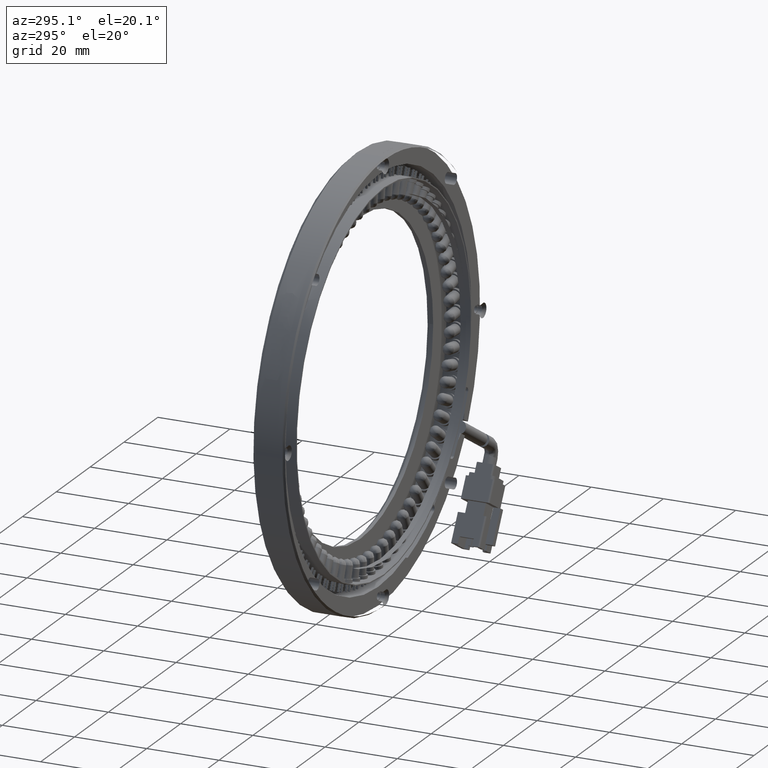
[diagram: clean part render]
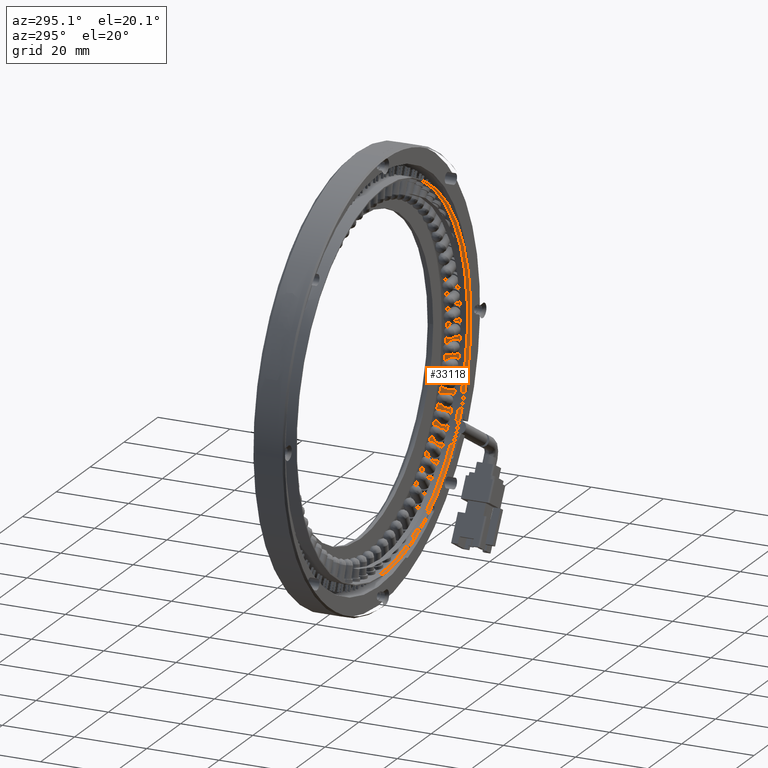
[diagram: same view with one face highlighted and labeled with its STEP entity id]
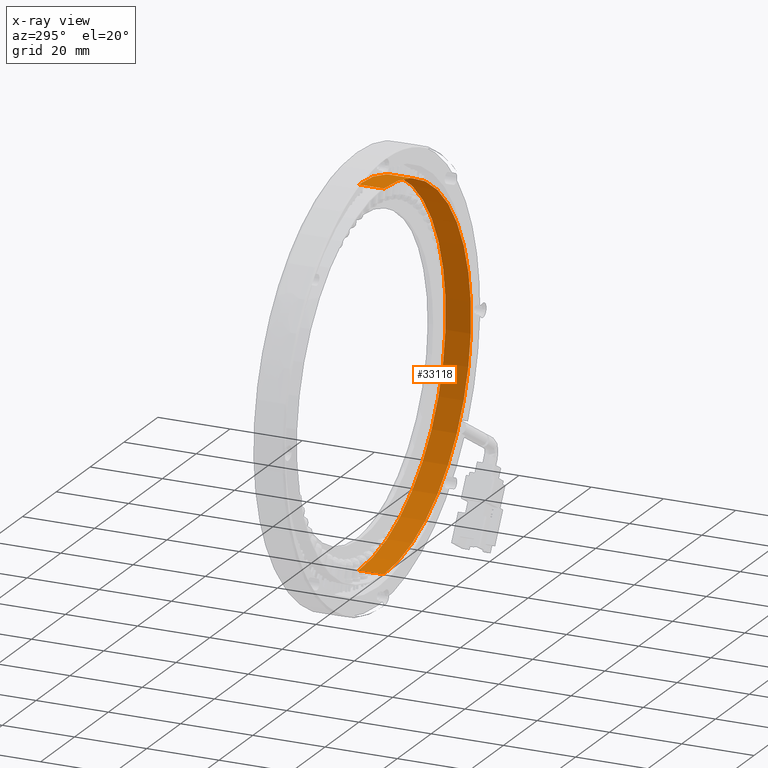
[diagram: x-ray of the same camera — body ghosted, the highlighted face saturated]
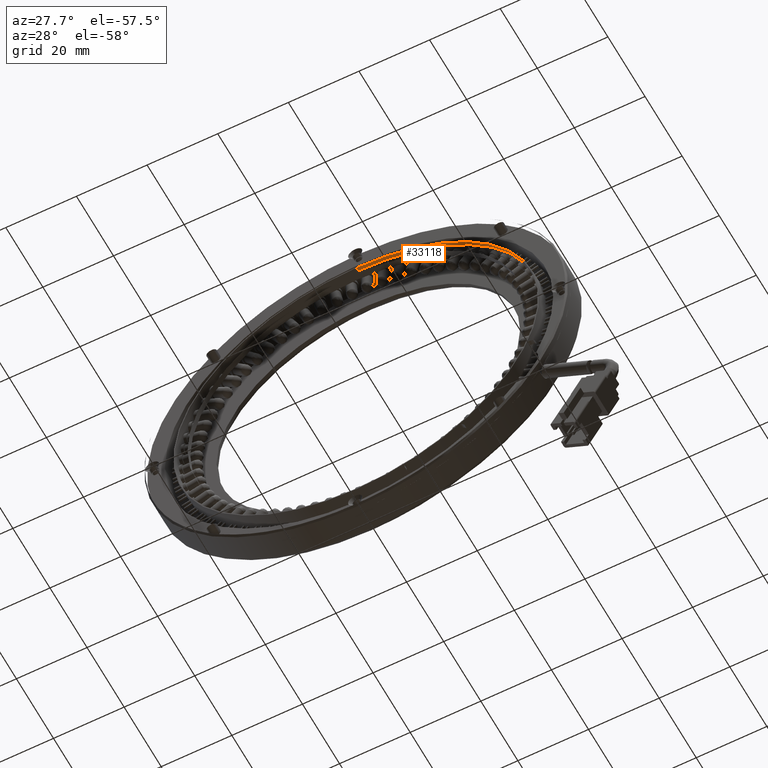
[diagram: same view with one face highlighted and labeled with its STEP entity id]
A machine part, auxiliary view. The second image highlights one B-rep face of the part: STEP entity #33118.
The next image is the same camera in x-ray: the body ghosted, the highlighted face saturated — about 0% of this face is hidden behind the body in this view.
A second angle (auxiliary view) of the same face is appended — the face is thin or edge-on in the first view.
In plain terms, the highlighted cylindrical surface (partial cylindrical patch) has radius 51.5 mm, axis along (-0, -1, -0).
Its self-contained STEP definition (entity closure, byte-faithful):
#2822 = VECTOR ( 'NONE', #3867, 1000.000000000000000 ) ;
#3867 = DIRECTION ( 'NONE',  ( -0.0000000000000000000, -1.000000000000000000, -0.0000000000000000000 ) ) ;
#4098 = ORIENTED_EDGE ( 'NONE', *, *, #17205, .F. ) ;
#5413 = DIRECTION ( 'NONE',  ( 0.0000000000000000000, 0.0000000000000000000, -1.000000000000000000 ) ) ;
#5994 = AXIS2_PLACEMENT_3D ( 'NONE', #15309, #49915, #20277 ) ;
#6175 = EDGE_CURVE ( 'NONE', #45980, #13943, #21252, .T. ) ;
#6542 = EDGE_CURVE ( 'NONE', #16617, #38253, #40506, .T. ) ;
#12827 = LINE ( 'NONE', #42293, #39221 ) ;
#13799 = CARTESIAN_POINT ( 'NONE',  ( 56.45624510954999000, 19.51889671361662300, 0.0000000000000000000 ) ) ;
#13943 = VERTEX_POINT ( 'NONE', #27204 ) ;
#15309 = CARTESIAN_POINT ( 'NONE',  ( 56.45624510954999000, 26.51889671361344700, 0.0000000000000000000 ) ) ;
#16617 = VERTEX_POINT ( 'NONE', #16643 ) ;
#16643 = CARTESIAN_POINT ( 'NONE',  ( 56.45624510954999000, 19.51889671361662300, -51.50000000000000700 ) ) ;
#17205 = EDGE_CURVE ( 'NONE', #45980, #38253, #12827, .T. ) ;
#17624 = DIRECTION ( 'NONE',  ( -0.0000000000000000000, -1.000000000000000000, -0.0000000000000000000 ) ) ;
#18820 = DIRECTION ( 'NONE',  ( 0.0000000000000000000, 0.0000000000000000000, -1.000000000000000000 ) ) ;
#20277 = DIRECTION ( 'NONE',  ( 0.0000000000000000000, 0.0000000000000000000, -1.000000000000000000 ) ) ;
#21252 = CIRCLE ( 'NONE', #5994, 51.50000000000000700 ) ;
#24264 = CARTESIAN_POINT ( 'NONE',  ( 56.45624510954999700, 26.51889671361344700, 51.50000000000000700 ) ) ;
#26691 = EDGE_CURVE ( 'NONE', #13943, #16617, #53995, .T. ) ;
#27204 = CARTESIAN_POINT ( 'NONE',  ( 56.45624510954999000, 26.51889671361344700, -51.50000000000000700 ) ) ;
#28559 = CARTESIAN_POINT ( 'NONE',  ( 56.45624510954999000, 26.51889671361344700, -51.50000000000000700 ) ) ;
#29902 = CARTESIAN_POINT ( 'NONE',  ( 56.45624510954999000, 26.51889671361344700, 0.0000000000000000000 ) ) ;
#33118 = ADVANCED_FACE ( 'NONE', ( #55918 ), #38100, .F. ) ;
#33409 = AXIS2_PLACEMENT_3D ( 'NONE', #13799, #48427, #18820 ) ;
#38100 = CYLINDRICAL_SURFACE ( 'NONE', #40776, 51.50000000000000700 ) ;
#38253 = VERTEX_POINT ( 'NONE', #54324 ) ;
#39221 = VECTOR ( 'NONE', #17624, 1000.000000000000000 ) ;
#40506 = CIRCLE ( 'NONE', #33409, 51.50000000000000700 ) ;
#40776 = AXIS2_PLACEMENT_3D ( 'NONE', #29902, #44840, #5413 ) ;
#42293 = CARTESIAN_POINT ( 'NONE',  ( 56.45624510954999700, 26.51889671361344700, 51.50000000000000700 ) ) ;
#43517 = ORIENTED_EDGE ( 'NONE', *, *, #6542, .T. ) ;
#44840 = DIRECTION ( 'NONE',  ( -0.0000000000000000000, -1.000000000000000000, -0.0000000000000000000 ) ) ;
#45980 = VERTEX_POINT ( 'NONE', #24264 ) ;
#47188 = EDGE_LOOP ( 'NONE', ( #4098, #55167, #53293, #43517 ) ) ;
#48427 = DIRECTION ( 'NONE',  ( -0.0000000000000000000, -1.000000000000000000, -0.0000000000000000000 ) ) ;
#49915 = DIRECTION ( 'NONE',  ( 0.0000000000000000000, 1.000000000000000000, 0.0000000000000000000 ) ) ;
#53293 = ORIENTED_EDGE ( 'NONE', *, *, #26691, .T. ) ;
#53995 = LINE ( 'NONE', #28559, #2822 ) ;
#54324 = CARTESIAN_POINT ( 'NONE',  ( 56.45624510954999700, 19.51889671361662300, 51.50000000000000700 ) ) ;
#55167 = ORIENTED_EDGE ( 'NONE', *, *, #6175, .T. ) ;
#55918 = FACE_OUTER_BOUND ( 'NONE', #47188, .T. ) ;